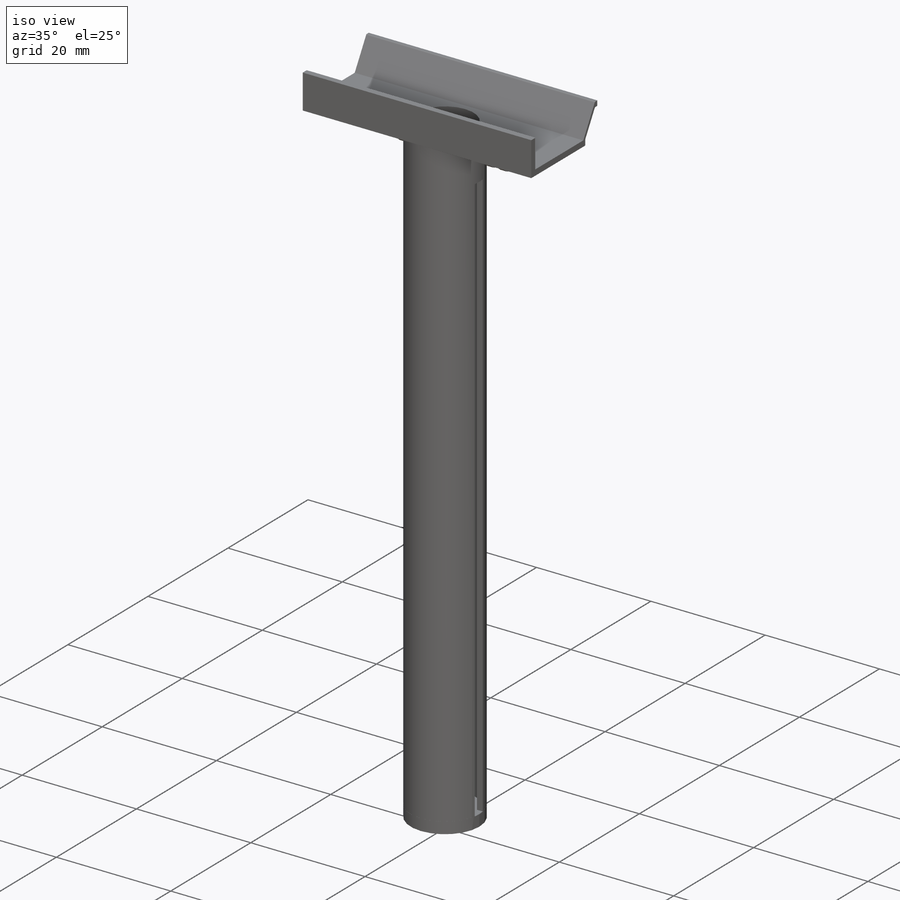
[diagram: iso view]
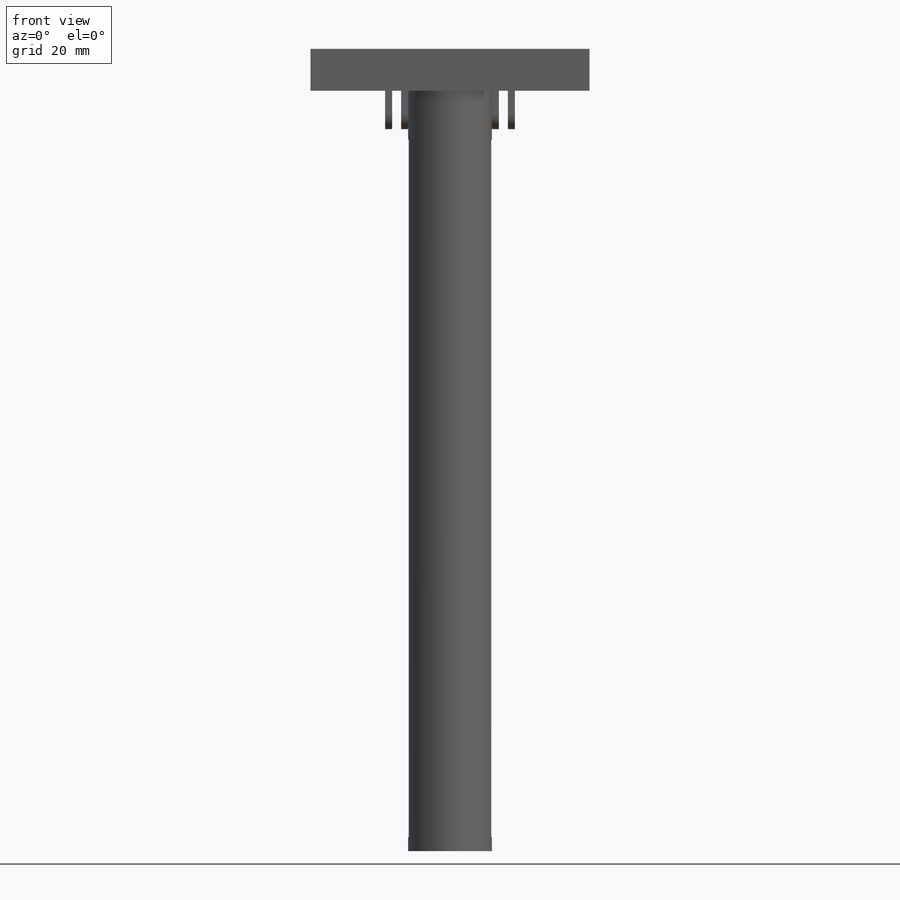
[diagram: front view]
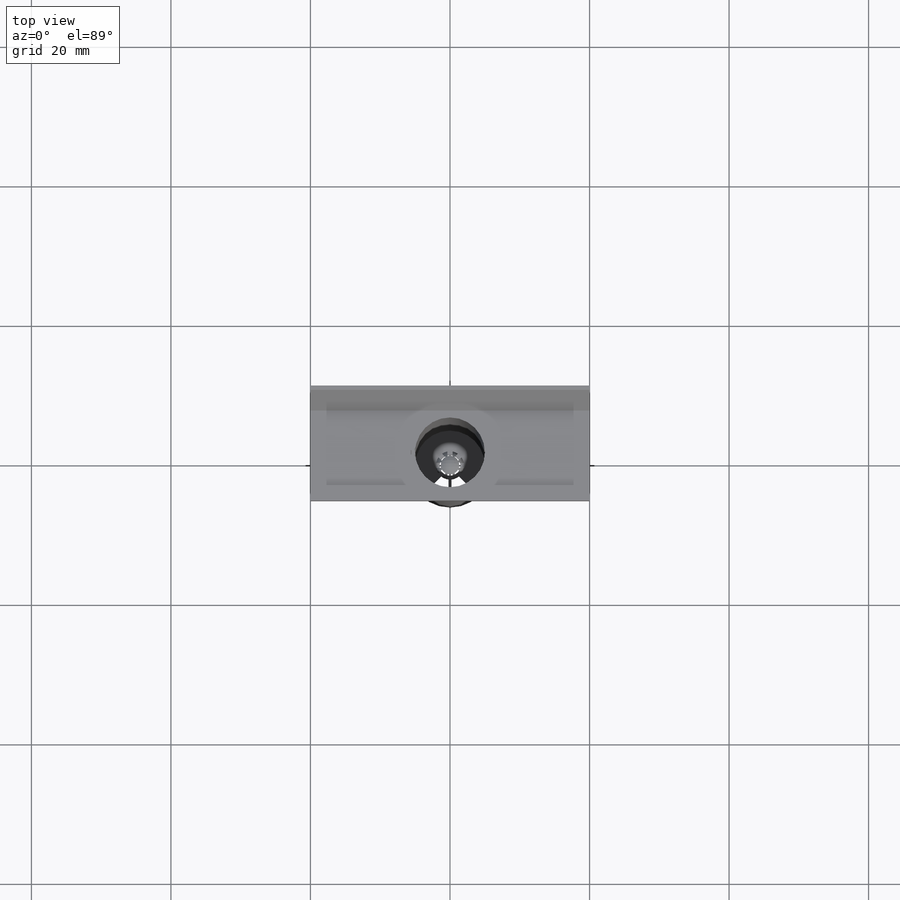
[diagram: top view]
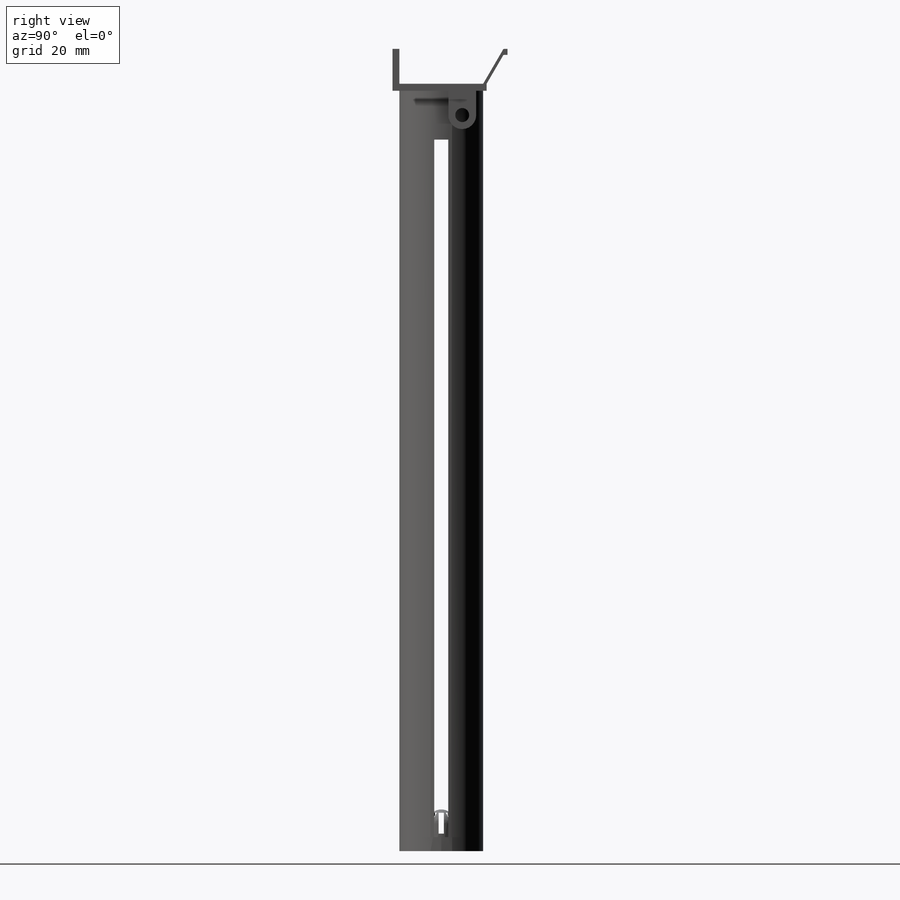
[diagram: right view]
SOLIDWORKS PART (.sldprt)
format: sldprt  version: not decoded by parser v0  size: 478,720 bytes
history: native  units: mm
features: sketch x17, cut_extrude x9, extrude x6, material x1, revolve x1, cut_revolve x1, pattern_circular x1, plane x1, mirror x1 (+11 scaffold rows collapsed)
feature tree (49):
  scaffold x11  (default folders/planes/origin — collapsed)
  material  "Material <not specified>"
  sketch  "Sketch1"  dims[c1.D1=10.0mm c1.D2=12.0mm c2.D1=10.0mm]
  extrude  "Boss-Extrude1"  Depth=100mm
  sketch  "Sketch2"  dims[D1=2.001mm]
  cut_extrude  "Cut-Extrude1"  Depth=100mm
  sketch  "Sketch14"  dims[c1.D5=0.2mm c1.D6=0.2mm c1.D1=7.0mm c1.D2=14.0mm c1.D3=7.0mm c1.D4=6.0mm c2.D2=0.5mm c2.D5=0.5mm c2.D7=3.5mm]
  extrude  "Boss-Extrude5"  Depth=20mm
  sketch  "Sketch3"  dims[D3=0.3mm D1=0.6mm D2=0.6mm]
  cut_extrude  "Cut-Extrude3"  Depth=0.301mm
  sketch  "Sketch4"  dims[D1=0.401mm]
  cut_extrude  "Cut-Extrude4"  Depth=0.5mm
  sketch  "Sketch6"  dims[D1=0.3mm]
  extrude  "Boss-Extrude2"  Depth=0.6mm
  sketch  "Sketch7"  dims[D1=3.998mm D2=0.2mm D3=0.2mm D5=45.0deg D4=8.0]
  extrude  "Boss-Extrude3"  Depth=2mm
  sketch  "Sketch8"
  extrude  "Boss-Extrude4"  Depth=4mm
  sketch  "Sketch9"
  revolve  "Revolve1"  Angle=180deg
  sketch  "Sketch10"  dims[D1=3.0mm]
  cut_extrude  "Cut-Extrude6"  Depth=4mm
  sketch  "Sketch11"
  cut_revolve  "Cut-Revolve3"  Angle=360deg
  sketch  "Sketch12"
  cut_extrude  "Cut-Extrude7"  [1 undecoded]
  pattern_circular  "CirPattern1"  Count=4 Angle=45deg
  sketch  "Sketch15"
  cut_extrude  "Cut-Extrude8"  Depth=5mm
  sketch  "Sketch16"  dims[D1=0.58mm]
  cut_extrude  "Cut-Extrude10"  Depth=0.601mm
  sketch  "Sketch17"  dims[D1=10.001mm]
  cut_extrude  "Cut-Extrude11"  [1 undecoded]
  plane  "Plane1"
  sketch  "Sketch18"  dims[D2=2.001mm D3=2.0mm D1=3.0mm]
  extrude  "Boss-Extrude6"  Depth=3.302mm
  sketch  "Sketch19"  dims[D1=1.0mm]
  cut_extrude  "Cut-Extrude12"  [1 undecoded]
  mirror  "Mirror1"
decode coverage: 27 of 36 modeling features carry decoded parameters
note: 3 parameter values undecoded
summary: no parameter record found for 3 features
note: suppression state not decoded; provenance and decode notes live in map.json
